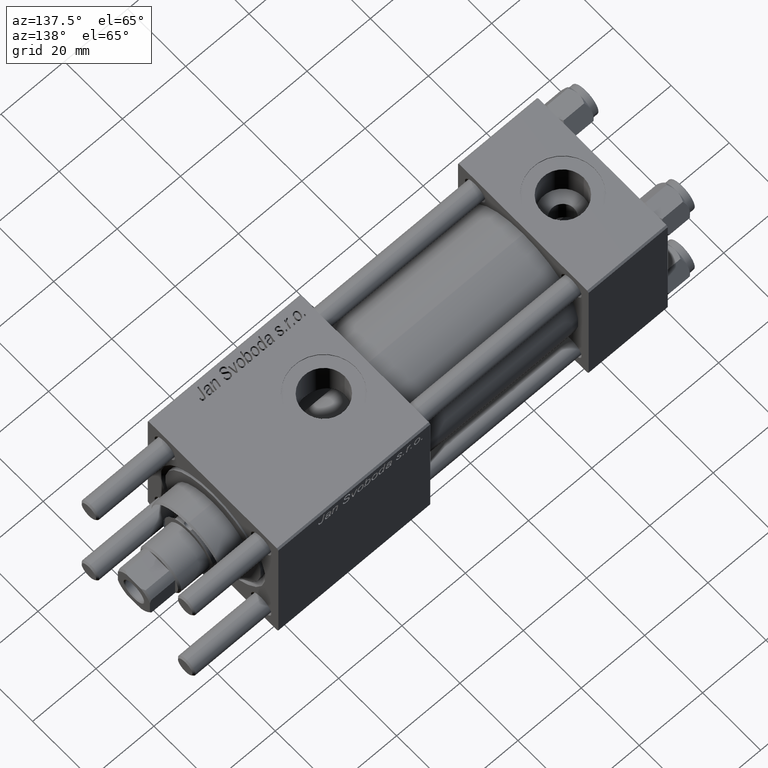
[diagram: clean part render]
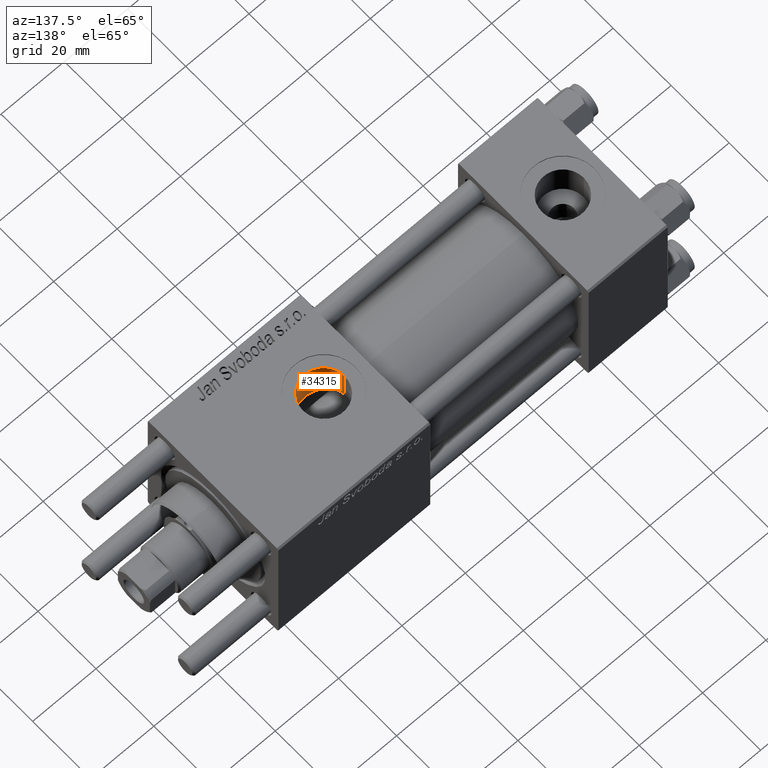
[diagram: same view with one face highlighted and labeled with its STEP entity id]
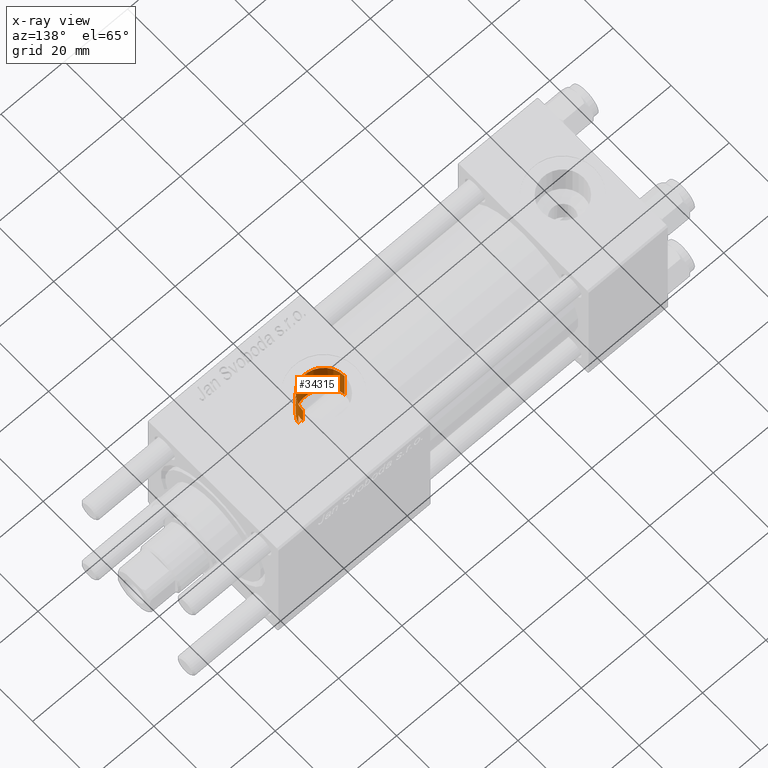
[diagram: x-ray of the same camera — body ghosted, the highlighted face saturated]
A machine part, auxiliary view. The second image highlights one B-rep face of the part: STEP entity #34315.
The next image is the same camera in x-ray: the body ghosted, the highlighted face saturated — about 0% of this face is hidden behind the body in this view.
In plain terms, the highlighted cylindrical surface (edge-blend (fillet) strip) has radius 6.58 mm, axis along (0, 0, -1).
Its self-contained STEP definition (entity closure, byte-faithful):
#1801 = CARTESIAN_POINT ( 'NONE',  ( 93.01155594446152008, -4.281437546902500557, 11.21500550341173863 ) ) ;
#2076 = CARTESIAN_POINT ( 'NONE',  ( 89.80612331289052008, -6.330331454284490178, 10.19469476613940273 ) ) ;
#3088 = ORIENTED_EDGE ( 'NONE', *, *, #12198, .T. ) ;
#3154 = EDGE_CURVE ( 'NONE', #48591, #41164, #14135, .T. ) ;
#3202 = CARTESIAN_POINT ( 'NONE',  ( 81.71629779899160440, -1.962378304040151011, 11.84003675942547673 ) ) ;
#3610 = CARTESIAN_POINT ( 'NONE',  ( 88.00000000000001421, -5.204170427930420494E-15, 22.29999999999999716 ) ) ;
#4067 = CARTESIAN_POINT ( 'NONE',  ( 82.90943709968694009, -4.173635198167837679, 11.25187747779291314 ) ) ;
#5750 = CARTESIAN_POINT ( 'NONE',  ( 94.30000000000001137, -1.899052395275089067, 45.29999999999999005 ) ) ;
#5892 = AXIS2_PLACEMENT_3D ( 'NONE', #3610, #12845, #48000 ) ;
#6960 = LINE ( 'NONE', #37804, #40836 ) ;
#7530 = CARTESIAN_POINT ( 'NONE',  ( 82.56220931812610786, -3.710026521228334317, 11.41328489595128914 ) ) ;
#8679 = CARTESIAN_POINT ( 'NONE',  ( 84.98945031834360009, -5.854084355677485974, 10.47573476137173643 ) ) ;
#9111 = VECTOR ( 'NONE', #32260, 1000.000000000000000 ) ;
#9404 = CARTESIAN_POINT ( 'NONE',  ( 94.58000000000001251, 2.020172399822898567E-15, 16.50000000000000000 ) ) ;
#10456 = CARTESIAN_POINT ( 'NONE',  ( 94.18477677513206459, -2.281298992827701877, 11.78751630630980607 ) ) ;
#10573 = CARTESIAN_POINT ( 'NONE',  ( 94.58000000000001251, -4.398352834091461452E-15, 22.29999999999999716 ) ) ;
#10742 = CARTESIAN_POINT ( 'NONE',  ( 91.72673468970526756, -5.426328151739157946, 10.70368258044636356 ) ) ;
#10858 = CARTESIAN_POINT ( 'NONE',  ( 94.58000000000001251, -4.398352834091461452E-15, 45.29999999999999005 ) ) ;
#11026 = CARTESIAN_POINT ( 'NONE',  ( 94.03789257063225193, -2.643944927135372325, 11.71053527662117055 ) ) ;
#12147 = CARTESIAN_POINT ( 'NONE',  ( 82.15480420465904388, -3.046487603127518984, 11.61204766141661793 ) ) ;
#12198 = EDGE_CURVE ( 'NONE', #19345, #41164, #39757, .T. ) ;
#12352 = ORIENTED_EDGE ( 'NONE', *, *, #26736, .T. ) ;
#12785 = CARTESIAN_POINT ( 'NONE',  ( 88.00000000000001421, -5.204170427930420494E-15, 45.29999999999999005 ) ) ;
#12845 = DIRECTION ( 'NONE',  ( -0.000000000000000000, -0.000000000000000000, -1.000000000000000000 ) ) ;
#13586 = CARTESIAN_POINT ( 'NONE',  ( 81.42000000000000171, -5.204170427930420494E-15, 22.29999999999999716 ) ) ;
#13744 = CARTESIAN_POINT ( 'NONE',  ( 94.39288924062448416, -1.590897540048193504, 16.42605488887726395 ) ) ;
#14135 = LINE ( 'NONE', #5750, #9111 ) ;
#14238 = B_SPLINE_CURVE_WITH_KNOTS ( 'NONE', 3,
 ( #37539, #10456, #11026, #41299, #55657, #1801, #15071, #33482, #29157, #45906, #10742, #42141, #33208, #41584, #16196, #2076, #54816, #41863, #20240, #28607, #15355, #32927, #46187, #24268, #55099, #50791, #37816, #38960, #8679, #38672, #25111, #38384, #51914, #4067, #43850, #7530, #21077, #12147, #47022, #42700, #3202, #56507, #34041, #47600, #42995, #21933 ),
 .UNSPECIFIED., .F., .F.,
 ( 4, 2, 2, 2, 2, 2, 2, 2, 2, 2, 2, 2, 2, 2, 2, 2, 2, 2, 2, 2, 2, 2, 4 ),
 ( 0.000000000000000000, 0.001192670592735514809, 0.002385341185471029617, 0.003578011778206543776, 0.004174347074574301722, 0.004770682370942059235, 0.005963352963677574260, 0.006559688260045349988, 0.007156023556413125715, 0.008348694149148638138, 0.008945029445516394784, 0.009541364741884149694, 0.01073403533461966125, 0.01133037063098741790, 0.01192670592735517281, 0.01311937652009071906, 0.01431204711282626531, 0.01490838240919403930, 0.01550471770556181503, 0.01669738829829738036, 0.01729372359466516823, 0.01789005889103295263, 0.01908272948376852837 ),
 .UNSPECIFIED. ) ;
#15071 = CARTESIAN_POINT ( 'NONE',  ( 92.75461516124364891, -4.564627351372486430, 11.10155823484087279 ) ) ;
#15355 = CARTESIAN_POINT ( 'NONE',  ( 87.84379216343923247, -6.581218343749225319, 10.03432783490170976 ) ) ;
#16196 = CARTESIAN_POINT ( 'NONE',  ( 90.18144946988459765, -6.210994763547172504, 10.26783529976223264 ) ) ;
#19345 = VERTEX_POINT ( 'NONE', #54424 ) ;
#20240 = CARTESIAN_POINT ( 'NONE',  ( 88.63868773215152430, -6.560960036370746984, 10.04759214048445948 ) ) ;
#20752 = VERTEX_POINT ( 'NONE', #13586 ) ;
#21077 = CARTESIAN_POINT ( 'NONE',  ( 82.45420827143600206, -3.546596150375938006, 11.46524487954329530 ) ) ;
#21933 = CARTESIAN_POINT ( 'NONE',  ( 81.42000000000000171, 1.469576107744199801E-15, 12.00000000000000178 ) ) ;
#22637 = AXIS2_PLACEMENT_3D ( 'NONE', #12785, #25174, #47943 ) ;
#23228 = CARTESIAN_POINT ( 'NONE',  ( 94.30000000000001137, -1.899052395275089067, 16.39035081991840670 ) ) ;
#23916 = CARTESIAN_POINT ( 'NONE',  ( 94.30000000000001137, -1.899052395275089067, 16.39035081991840670 ) ) ;
#24026 = VERTEX_POINT ( 'NONE', #10573 ) ;
#24231 = EDGE_CURVE ( 'NONE', #24026, #20752, #30736, .T. ) ;
#24268 = CARTESIAN_POINT ( 'NONE',  ( 86.64933611902864641, -6.452212448331274608, 10.11798947633288925 ) ) ;
#25111 = CARTESIAN_POINT ( 'NONE',  ( 84.16042478392878934, -5.357485016297855118, 10.74100582260112979 ) ) ;
#25174 = DIRECTION ( 'NONE',  ( 0.000000000000000000, 0.000000000000000000, -1.000000000000000000 ) ) ;
#26736 = EDGE_CURVE ( 'NONE', #24026, #19345, #54656, .T. ) ;
#27170 = EDGE_CURVE ( 'NONE', #20752, #41592, #6960, .T. ) ;
#28443 = DIRECTION ( 'NONE',  ( 0.000000000000000000, 0.000000000000000000, -1.000000000000000000 ) ) ;
#28607 = CARTESIAN_POINT ( 'NONE',  ( 88.04338309676340657, -6.582852539851475449, 10.03325114525026862 ) ) ;
#29157 = CARTESIAN_POINT ( 'NONE',  ( 92.18893691967821269, -5.078008749725831272, 10.87340577274958164 ) ) ;
#29776 = FACE_OUTER_BOUND ( 'NONE', #34480, .T. ) ;
#30696 = VECTOR ( 'NONE', #28443, 1000.000000000000000 ) ;
#30736 = CIRCLE ( 'NONE', #5892, 6.580000000000002736 ) ;
#31381 = EDGE_CURVE ( 'NONE', #48591, #41592, #14238, .T. ) ;
#32173 = ORIENTED_EDGE ( 'NONE', *, *, #24231, .F. ) ;
#32260 = DIRECTION ( 'NONE',  ( -0.000000000000000000, -0.000000000000000000, 1.000000000000000000 ) ) ;
#32927 = CARTESIAN_POINT ( 'NONE',  ( 87.44221154047806976, -6.559398433601089984, 10.04860498654694823 ) ) ;
#33208 = CARTESIAN_POINT ( 'NONE',  ( 90.90036750558618905, -5.918981686858812985, 10.44010423036056778 ) ) ;
#33482 = CARTESIAN_POINT ( 'NONE',  ( 92.33470223076432148, -4.954109770454556028, 10.93054897555022542 ) ) ;
#34041 = CARTESIAN_POINT ( 'NONE',  ( 81.56395315102130894, -1.383303317825534062, 11.92163510970724971 ) ) ;
#34315 = ADVANCED_FACE ( 'NONE', ( #29776 ), #47654, .F. ) ;
#34480 = EDGE_LOOP ( 'NONE', ( #32173, #12352, #3088, #35697, #51888, #56612 ) ) ;
#35346 = CARTESIAN_POINT ( 'NONE',  ( 81.42000000000000171, 1.469576107744199801E-15, 12.00000000000000178 ) ) ;
#35697 = ORIENTED_EDGE ( 'NONE', *, *, #3154, .F. ) ;
#35930 = CARTESIAN_POINT ( 'NONE',  ( 94.55609068154467423, -0.6453575044926712634, 16.49042383039745374 ) ) ;
#36957 = DIRECTION ( 'NONE',  ( 0.000000000000000000, 0.000000000000000000, -1.000000000000000000 ) ) ;
#37539 = CARTESIAN_POINT ( 'NONE',  ( 94.30000000000001137, -1.899052395275089067, 11.84878052796995718 ) ) ;
#37804 = CARTESIAN_POINT ( 'NONE',  ( 81.42000000000000171, -5.204170427930420494E-15, 45.29999999999999005 ) ) ;
#37816 = CARTESIAN_POINT ( 'NONE',  ( 85.52064445426731254, -6.098144367882026629, 10.33542248025770860 ) ) ;
#38384 = CARTESIAN_POINT ( 'NONE',  ( 83.56113700165016667, -4.872522839515975868, 10.96952017908725630 ) ) ;
#38672 = CARTESIAN_POINT ( 'NONE',  ( 84.48210468445526544, -5.574052804316229626, 10.62898043420413252 ) ) ;
#38960 = CARTESIAN_POINT ( 'NONE',  ( 85.16320872901937378, -5.940301670670843137, 10.42694291910975046 ) ) ;
#39757 = B_SPLINE_CURVE_WITH_KNOTS ( 'NONE', 3,
 ( #9404, #52929, #35930, #53222, #13744, #23228 ),
 .UNSPECIFIED., .F., .F.,
 ( 4, 2, 4 ),
 ( 0.001922561461481083313, 0.002880296703329207012, 0.003838031945177331362 ),
 .UNSPECIFIED. ) ;
#40836 = VECTOR ( 'NONE', #36957, 1000.000000000000000 ) ;
#41164 = VERTEX_POINT ( 'NONE', #23916 ) ;
#41299 = CARTESIAN_POINT ( 'NONE',  ( 93.68578075181308407, -3.334439790209559717, 11.53293512199652149 ) ) ;
#41584 = CARTESIAN_POINT ( 'NONE',  ( 90.36442671337263732, -6.143566170091887990, 10.30844919719950781 ) ) ;
#41592 = VERTEX_POINT ( 'NONE', #35346 ) ;
#41863 = CARTESIAN_POINT ( 'NONE',  ( 89.03095050380548514, -6.510856269794945916, 10.08062642345327120 ) ) ;
#42141 = CARTESIAN_POINT ( 'NONE',  ( 91.24045236004087656, -5.739740685217730842, 10.54091119589231518 ) ) ;
#42700 = CARTESIAN_POINT ( 'NONE',  ( 81.77783752250837779, -2.149251954852693824, 11.80743069880358753 ) ) ;
#42995 = CARTESIAN_POINT ( 'NONE',  ( 81.41999999999998749, -0.3987589306235777564, 12.00000000000000178 ) ) ;
#43850 = CARTESIAN_POINT ( 'NONE',  ( 82.78969099161481893, -4.023250467623474158, 11.30667168441424941 ) ) ;
#44081 = CARTESIAN_POINT ( 'NONE',  ( 94.30000000000001137, -1.899052395275089067, 11.84878052796995718 ) ) ;
#45906 = CARTESIAN_POINT ( 'NONE',  ( 91.88529033867185092, -5.313933040936652752, 10.76007628214585132 ) ) ;
#46187 = CARTESIAN_POINT ( 'NONE',  ( 87.24099402833643069, -6.539116494941770164, 10.06186586056366750 ) ) ;
#47022 = CARTESIAN_POINT ( 'NONE',  ( 81.98561383412463499, -2.697465198051460789, 11.69882456468388376 ) ) ;
#47600 = CARTESIAN_POINT ( 'NONE',  ( 81.45594931342614586, -0.7944237263419130501, 11.98017270223897235 ) ) ;
#47654 = CYLINDRICAL_SURFACE ( 'NONE', #22637, 6.580000000000002736 ) ;
#47943 = DIRECTION ( 'NONE',  ( -1.000000000000000000, 0.000000000000000000, 0.000000000000000000 ) ) ;
#48000 = DIRECTION ( 'NONE',  ( 1.000000000000000000, 0.000000000000000000, 0.000000000000000000 ) ) ;
#48591 = VERTEX_POINT ( 'NONE', #44081 ) ;
#50791 = CARTESIAN_POINT ( 'NONE',  ( 85.70524222956265703, -6.170038997559282201, 10.29252570320665150 ) ) ;
#51888 = ORIENTED_EDGE ( 'NONE', *, *, #31381, .T. ) ;
#51914 = CARTESIAN_POINT ( 'NONE',  ( 83.28639562774002059, -4.607057570676570180, 11.08471608617320392 ) ) ;
#52929 = CARTESIAN_POINT ( 'NONE',  ( 94.58000000000002672, -0.3226077776615777215, 16.50000000000000711 ) ) ;
#53222 = CARTESIAN_POINT ( 'NONE',  ( 94.46252323665211748, -1.278516620530523173, 16.45344826064652466 ) ) ;
#54424 = CARTESIAN_POINT ( 'NONE',  ( 94.58000000000001251, 2.020172399822898567E-15, 16.50000000000000000 ) ) ;
#54656 = LINE ( 'NONE', #10858, #30696 ) ;
#54816 = CARTESIAN_POINT ( 'NONE',  ( 89.61262682924856904, -6.382418177023039263, 10.16205234327171070 ) ) ;
#55099 = CARTESIAN_POINT ( 'NONE',  ( 86.26571117503740993, -6.359577037598437954, 10.17731036340830997 ) ) ;
#55657 = CARTESIAN_POINT ( 'NONE',  ( 93.47922161013028131, -3.663950190651517502, 11.43164576559327905 ) ) ;
#56507 = CARTESIAN_POINT ( 'NONE',  ( 81.60938533297500896, -1.579837376672096338, 11.89712204425859454 ) ) ;
#56612 = ORIENTED_EDGE ( 'NONE', *, *, #27170, .F. ) ;